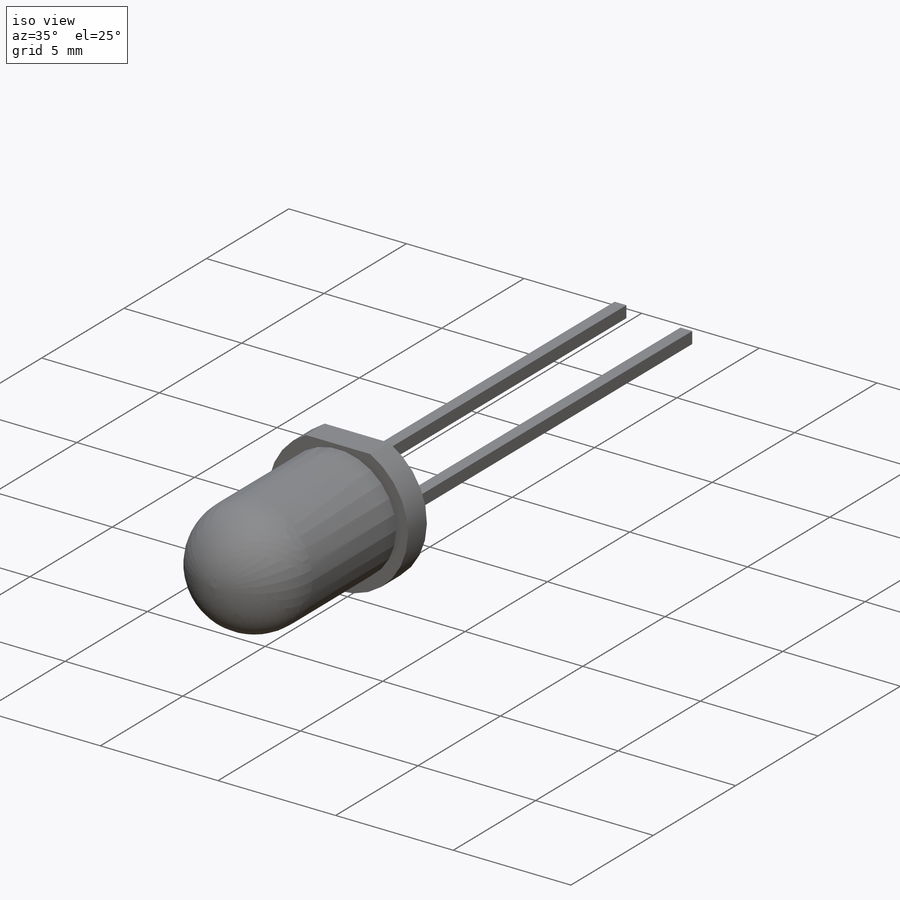
[diagram: iso view]
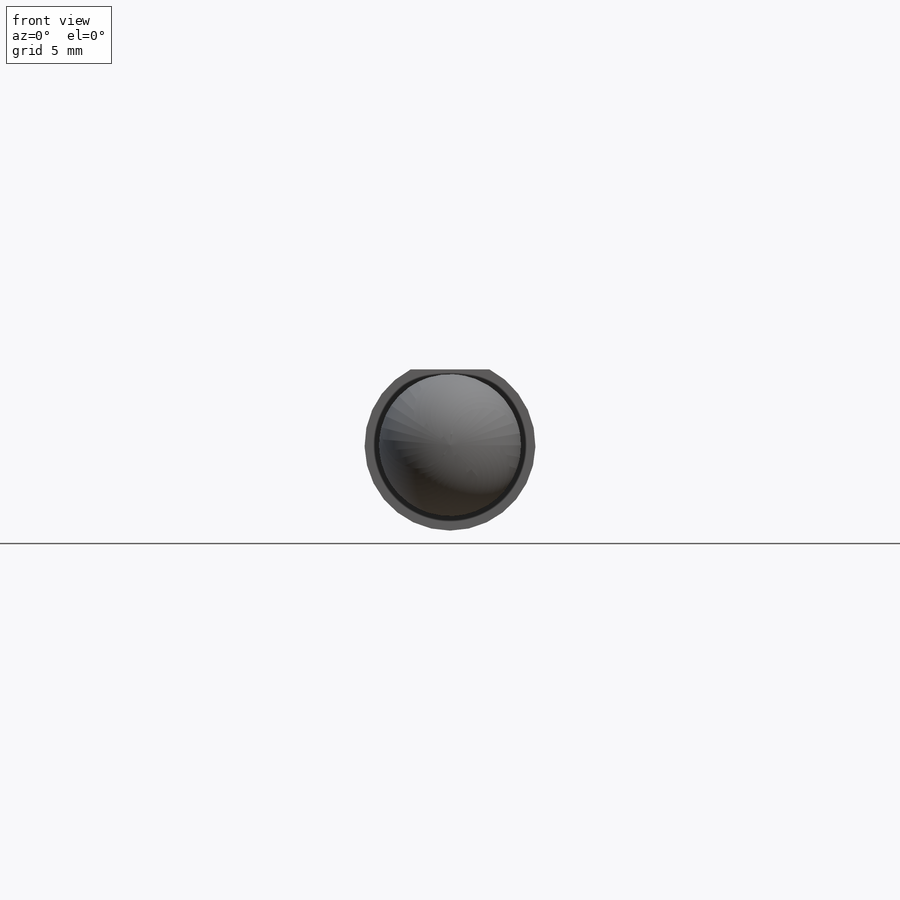
[diagram: front view]
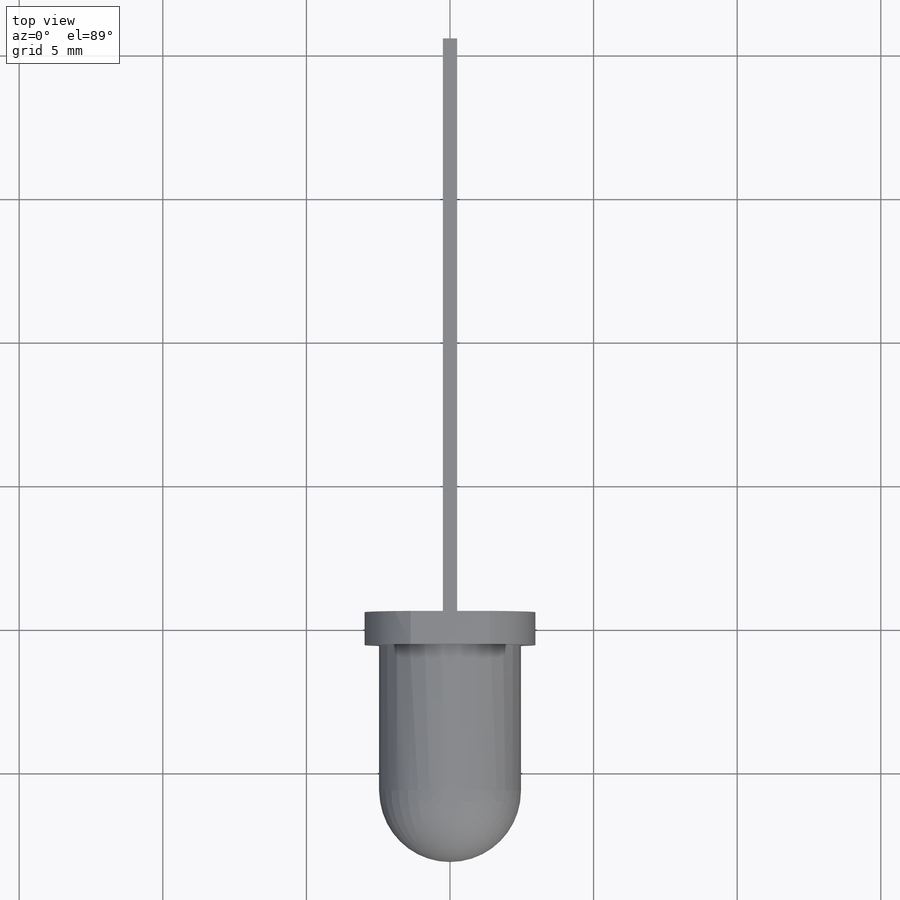
[diagram: top view]
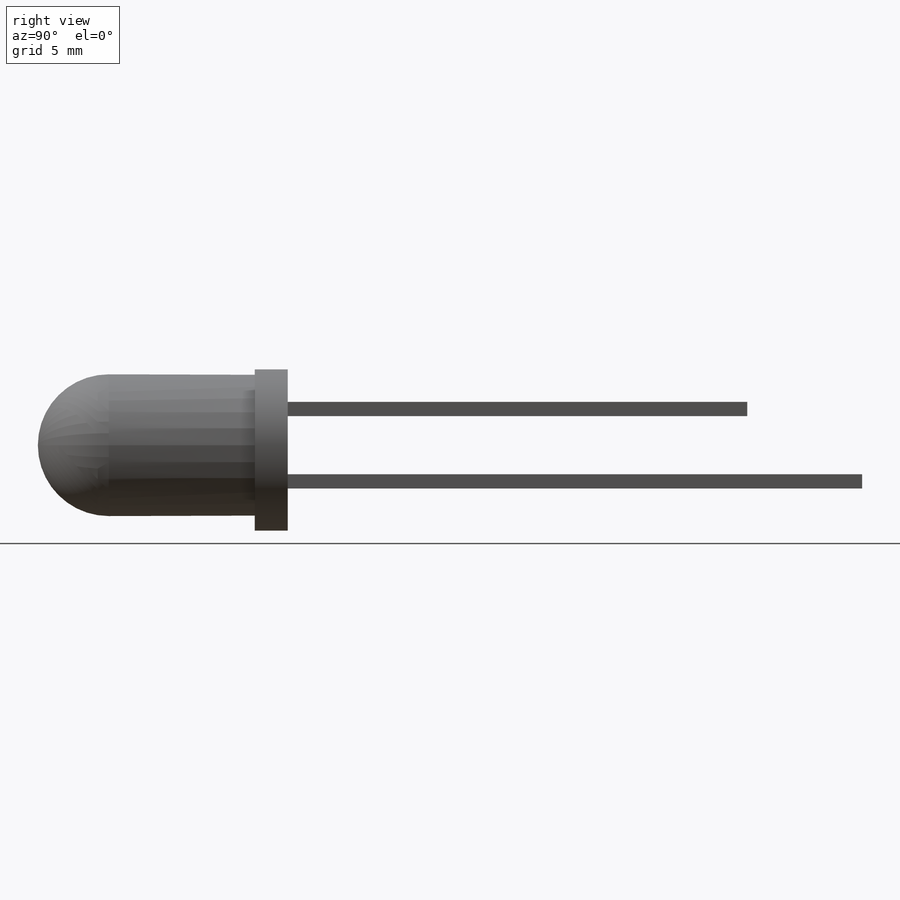
[diagram: right view]
SOLIDWORKS PART (.sldprt)
format: sldprt  version: not decoded by parser v0  size: 228,864 bytes
history: native  units: mm
features: sketch x5, extrude x3, plane x2, cut_extrude x2, material x1, fillet x1 (+12 scaffold rows collapsed)
feature tree (26):
  scaffold x12  (default folders/planes/origin — collapsed)
  material  "Matériau <non spécifié>"
  sketch  "Sketch1"  dims[D1=5.95mm]
  extrude  "Extrude1"  Depth=1.15mm
  sketch  "Sketch2"  dims[D1=4.94mm]
  extrude  "Extrude2"  Depth=7.55mm
  fillet  "Fillet2"  Radius=2.47mm
  plane  "Plane1"  Offset=3mm
  sketch  "Sketch4"
  cut_extrude  "Extrude3"  Depth=0.36mm
  plane  "Plane2"  Offset=0mm
  sketch  "Sketch5"  dims[D1=0.5mm D2=0.5mm D3=2.02mm D4=1.01mm D5=0.5mm D6=0.5mm D7=0.25mm D8=0.25mm]
  extrude  "Extrude4"  Depth=20mm
  sketch  "Sketch6"
  cut_extrude  "Extrude5"  Depth=4mm
decode coverage: 9 of 11 modeling features carry decoded parameters
note: suppression state not decoded; provenance and decode notes live in map.json
